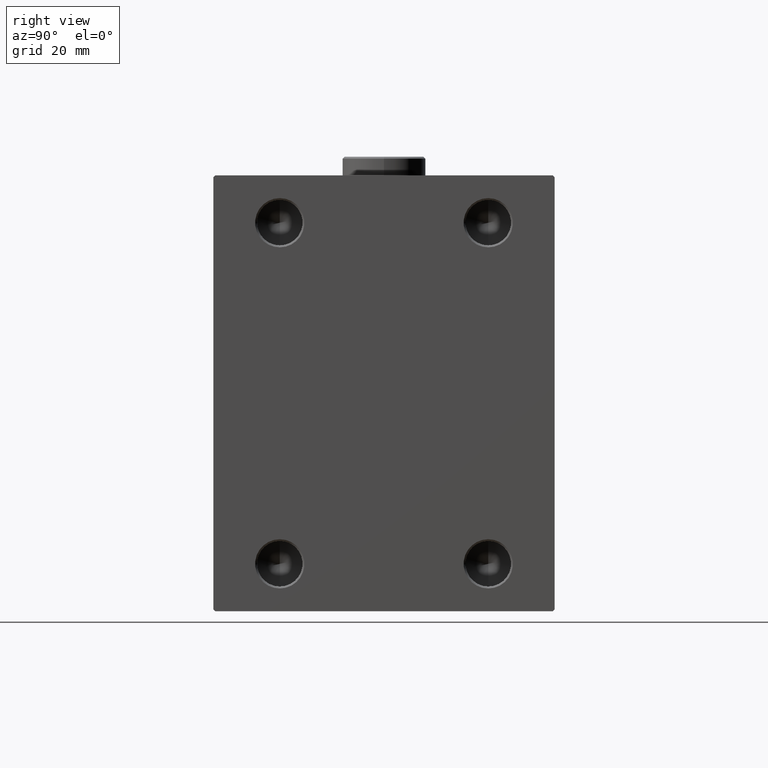
[diagram: clean part render]
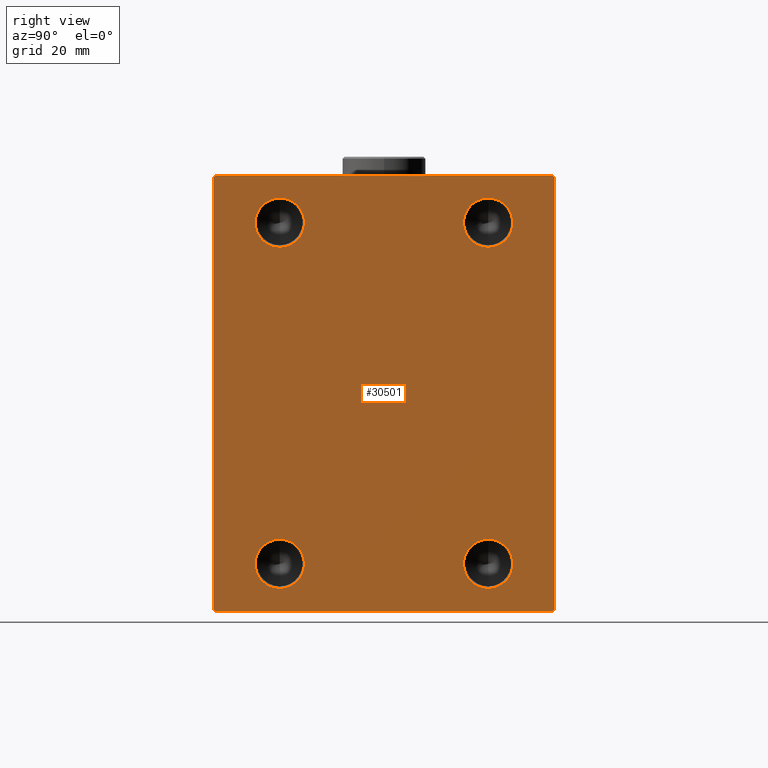
[diagram: same view with one face highlighted and labeled with its STEP entity id]
A machine part, right view. The second image highlights one B-rep face of the part: STEP entity #30501.
In plain terms, the highlighted planar face has unit normal (1, 0, 0).
Its self-contained STEP definition (entity closure, byte-faithful):
#115 = EDGE_CURVE ( 'NONE', #22630, #45405, #16005, .T. ) ;
#158 = VERTEX_POINT ( 'NONE', #10045 ) ;
#490 = VERTEX_POINT ( 'NONE', #8640 ) ;
#569 = DIRECTION ( 'NONE',  ( 1.000000000000000000, -0.000000000000000000, -0.000000000000000000 ) ) ;
#1115 = DIRECTION ( 'NONE',  ( 0.000000000000000000, 0.000000000000000000, -1.000000000000000000 ) ) ;
#1458 = CARTESIAN_POINT ( 'NONE',  ( 108.0000000000000000, 45.00000000000002842, -57.49999999999999289 ) ) ;
#1558 = DIRECTION ( 'NONE',  ( 1.000000000000000000, -0.000000000000000000, -0.000000000000000000 ) ) ;
#1763 = CARTESIAN_POINT ( 'NONE',  ( 108.0000000000000000, -27.49999999999999645, -45.00000000000001421 ) ) ;
#1944 = ORIENTED_EDGE ( 'NONE', *, *, #7257, .F. ) ;
#2392 = CARTESIAN_POINT ( 'NONE',  ( 108.0000000000000000, -44.50000000000002842, -57.49999999999999289 ) ) ;
#2439 = ORIENTED_EDGE ( 'NONE', *, *, #38990, .T. ) ;
#2465 = VECTOR ( 'NONE', #1115, 1000.000000000000000 ) ;
#2828 = CARTESIAN_POINT ( 'NONE',  ( 108.0000000000000000, -27.49999999999999645, 44.99999999999998579 ) ) ;
#2835 = EDGE_CURVE ( 'NONE', #45405, #22630, #4980, .T. ) ;
#3091 = AXIS2_PLACEMENT_3D ( 'NONE', #40921, #23370, #16439 ) ;
#3283 = CARTESIAN_POINT ( 'NONE',  ( 108.0000000000000000, -27.49999999999999645, 51.49999999999999289 ) ) ;
#3686 = EDGE_CURVE ( 'NONE', #33344, #15741, #13589, .T. ) ;
#3850 = ORIENTED_EDGE ( 'NONE', *, *, #115, .F. ) ;
#4179 = ORIENTED_EDGE ( 'NONE', *, *, #20142, .T. ) ;
#4241 = EDGE_LOOP ( 'NONE', ( #18279, #4441 ) ) ;
#4441 = ORIENTED_EDGE ( 'NONE', *, *, #20671, .F. ) ;
#4782 = CARTESIAN_POINT ( 'NONE',  ( 108.0000000000000000, -51.00000000000000711, -51.00000000000000711 ) ) ;
#4849 = DIRECTION ( 'NONE',  ( 1.000000000000000000, -0.000000000000000000, -0.000000000000000000 ) ) ;
#4858 = VERTEX_POINT ( 'NONE', #27139 ) ;
#4980 = CIRCLE ( 'NONE', #14574, 6.500000000000005329 ) ;
#5898 = EDGE_CURVE ( 'NONE', #9826, #29651, #33928, .T. ) ;
#6435 = LINE ( 'NONE', #12521, #19025 ) ;
#6538 = EDGE_CURVE ( 'NONE', #158, #4858, #29547, .T. ) ;
#6687 = VERTEX_POINT ( 'NONE', #25634 ) ;
#6883 = CARTESIAN_POINT ( 'NONE',  ( 108.0000000000000000, -45.00000000000000000, 56.99999999999999289 ) ) ;
#7257 = EDGE_CURVE ( 'NONE', #20959, #19937, #11667, .T. ) ;
#7532 = EDGE_CURVE ( 'NONE', #29651, #490, #6435, .T. ) ;
#8196 = CARTESIAN_POINT ( 'NONE',  ( 108.0000000000000000, 27.50000000000000355, -45.00000000000001421 ) ) ;
#8497 = DIRECTION ( 'NONE',  ( 0.000000000000000000, 0.000000000000000000, -1.000000000000000000 ) ) ;
#8640 = CARTESIAN_POINT ( 'NONE',  ( 108.0000000000000000, -44.49999999999997158, 57.49999999999999289 ) ) ;
#8985 = DIRECTION ( 'NONE',  ( -0.000000000000000000, -0.7071067811865474617, 0.7071067811865474617 ) ) ;
#9501 = FACE_BOUND ( 'NONE', #28234, .T. ) ;
#9826 = VERTEX_POINT ( 'NONE', #15693 ) ;
#9948 = FACE_BOUND ( 'NONE', #31400, .T. ) ;
#10045 = CARTESIAN_POINT ( 'NONE',  ( 108.0000000000000000, 44.50000000000002842, -57.49999999999999289 ) ) ;
#10056 = DIRECTION ( 'NONE',  ( 0.000000000000000000, -0.7071067811865474617, -0.7071067811865474617 ) ) ;
#10170 = PLANE ( 'NONE',  #3091 ) ;
#10603 = AXIS2_PLACEMENT_3D ( 'NONE', #14978, #25373, #42690 ) ;
#10968 = DIRECTION ( 'NONE',  ( 0.000000000000000000, 0.000000000000000000, -1.000000000000000000 ) ) ;
#11667 = CIRCLE ( 'NONE', #27889, 6.500000000000005329 ) ;
#12227 = CARTESIAN_POINT ( 'NONE',  ( 108.0000000000000000, 51.00000000000000711, -51.00000000000000711 ) ) ;
#12521 = CARTESIAN_POINT ( 'NONE',  ( 108.0000000000000000, 45.00000000000001421, 57.50000000000000711 ) ) ;
#13589 = LINE ( 'NONE', #4782, #27052 ) ;
#13736 = DIRECTION ( 'NONE',  ( 0.000000000000000000, 0.000000000000000000, -1.000000000000000000 ) ) ;
#14077 = DIRECTION ( 'NONE',  ( 1.000000000000000000, -0.000000000000000000, -0.000000000000000000 ) ) ;
#14532 = ORIENTED_EDGE ( 'NONE', *, *, #25796, .T. ) ;
#14574 = AXIS2_PLACEMENT_3D ( 'NONE', #31412, #14077, #42018 ) ;
#14978 = CARTESIAN_POINT ( 'NONE',  ( 108.0000000000000000, 27.50000000000000355, 44.99999999999998579 ) ) ;
#15062 = AXIS2_PLACEMENT_3D ( 'NONE', #38442, #32203, #13736 ) ;
#15131 = EDGE_LOOP ( 'NONE', ( #45554, #21005 ) ) ;
#15693 = CARTESIAN_POINT ( 'NONE',  ( 108.0000000000000000, 45.00000000000001421, 57.00000000000000711 ) ) ;
#15741 = VERTEX_POINT ( 'NONE', #2392 ) ;
#15867 = DIRECTION ( 'NONE',  ( 1.000000000000000000, -0.000000000000000000, -0.000000000000000000 ) ) ;
#16005 = CIRCLE ( 'NONE', #43295, 6.500000000000005329 ) ;
#16439 = DIRECTION ( 'NONE',  ( 0.000000000000000000, 0.000000000000000000, -1.000000000000000000 ) ) ;
#17219 = CARTESIAN_POINT ( 'NONE',  ( 108.0000000000000000, -51.00000000000000000, 51.00000000000000000 ) ) ;
#17283 = EDGE_CURVE ( 'NONE', #490, #31854, #31084, .T. ) ;
#18279 = ORIENTED_EDGE ( 'NONE', *, *, #27233, .F. ) ;
#18327 = LINE ( 'NONE', #1458, #37915 ) ;
#18657 = CIRCLE ( 'NONE', #45202, 6.500000000000005329 ) ;
#18938 = CARTESIAN_POINT ( 'NONE',  ( 108.0000000000000000, 27.50000000000000355, -45.00000000000001421 ) ) ;
#19025 = VECTOR ( 'NONE', #33309, 1000.000000000000000 ) ;
#19718 = DIRECTION ( 'NONE',  ( 1.000000000000000000, -0.000000000000000000, -0.000000000000000000 ) ) ;
#19937 = VERTEX_POINT ( 'NONE', #27409 ) ;
#20142 = EDGE_CURVE ( 'NONE', #15741, #158, #21106, .T. ) ;
#20178 = DIRECTION ( 'NONE',  ( 0.000000000000000000, 0.000000000000000000, -1.000000000000000000 ) ) ;
#20276 = CARTESIAN_POINT ( 'NONE',  ( 108.0000000000000000, 44.50000000000001421, 57.50000000000000711 ) ) ;
#20347 = VERTEX_POINT ( 'NONE', #40240 ) ;
#20671 = EDGE_CURVE ( 'NONE', #40595, #21925, #39178, .T. ) ;
#20959 = VERTEX_POINT ( 'NONE', #39616 ) ;
#21005 = ORIENTED_EDGE ( 'NONE', *, *, #35086, .F. ) ;
#21016 = ORIENTED_EDGE ( 'NONE', *, *, #5898, .T. ) ;
#21106 = LINE ( 'NONE', #31717, #37740 ) ;
#21925 = VERTEX_POINT ( 'NONE', #3283 ) ;
#22630 = VERTEX_POINT ( 'NONE', #37106 ) ;
#22651 = DIRECTION ( 'NONE',  ( 0.000000000000000000, 0.000000000000000000, -1.000000000000000000 ) ) ;
#22834 = LINE ( 'NONE', #39908, #2465 ) ;
#23370 = DIRECTION ( 'NONE',  ( 1.000000000000000000, 0.000000000000000000, 0.000000000000000000 ) ) ;
#23824 = FACE_BOUND ( 'NONE', #15131, .T. ) ;
#24889 = VECTOR ( 'NONE', #25864, 1000.000000000000114 ) ;
#25373 = DIRECTION ( 'NONE',  ( 1.000000000000000000, -0.000000000000000000, -0.000000000000000000 ) ) ;
#25634 = CARTESIAN_POINT ( 'NONE',  ( 108.0000000000000000, 27.50000000000000355, 38.49999999999997868 ) ) ;
#25796 = EDGE_CURVE ( 'NONE', #31854, #33344, #22834, .T. ) ;
#25864 = DIRECTION ( 'NONE',  ( -0.000000000000000000, 0.7071067811865474617, 0.7071067811865474617 ) ) ;
#25947 = AXIS2_PLACEMENT_3D ( 'NONE', #43144, #1558, #8497 ) ;
#25950 = VECTOR ( 'NONE', #10056, 1000.000000000000114 ) ;
#27052 = VECTOR ( 'NONE', #35967, 1000.000000000000114 ) ;
#27067 = FACE_BOUND ( 'NONE', #4241, .T. ) ;
#27114 = ORIENTED_EDGE ( 'NONE', *, *, #2835, .F. ) ;
#27139 = CARTESIAN_POINT ( 'NONE',  ( 108.0000000000000000, 45.00000000000002842, -56.99999999999999289 ) ) ;
#27233 = EDGE_CURVE ( 'NONE', #21925, #40595, #30525, .T. ) ;
#27409 = CARTESIAN_POINT ( 'NONE',  ( 108.0000000000000000, 27.50000000000000355, -51.50000000000002132 ) ) ;
#27889 = AXIS2_PLACEMENT_3D ( 'NONE', #8196, #569, #10968 ) ;
#28234 = EDGE_LOOP ( 'NONE', ( #1944, #43246 ) ) ;
#28436 = EDGE_LOOP ( 'NONE', ( #30431, #28955, #14532, #35960, #4179, #44487, #2439, #21016 ) ) ;
#28955 = ORIENTED_EDGE ( 'NONE', *, *, #17283, .T. ) ;
#29328 = CARTESIAN_POINT ( 'NONE',  ( 108.0000000000000000, -27.49999999999999645, -38.50000000000000711 ) ) ;
#29547 = LINE ( 'NONE', #12227, #24889 ) ;
#29651 = VERTEX_POINT ( 'NONE', #20276 ) ;
#30064 = VECTOR ( 'NONE', #8985, 1000.000000000000114 ) ;
#30431 = ORIENTED_EDGE ( 'NONE', *, *, #7532, .T. ) ;
#30501 = ADVANCED_FACE ( 'NONE', ( #23824, #27067, #9948, #9501, #41815 ), #10170, .T. ) ;
#30525 = CIRCLE ( 'NONE', #39345, 6.500000000000005329 ) ;
#31084 = LINE ( 'NONE', #17219, #25950 ) ;
#31400 = EDGE_LOOP ( 'NONE', ( #27114, #3850 ) ) ;
#31412 = CARTESIAN_POINT ( 'NONE',  ( 108.0000000000000000, -27.49999999999999645, -45.00000000000001421 ) ) ;
#31717 = CARTESIAN_POINT ( 'NONE',  ( 108.0000000000000000, -45.00000000000000000, -57.49999999999999289 ) ) ;
#31854 = VERTEX_POINT ( 'NONE', #6883 ) ;
#32042 = CIRCLE ( 'NONE', #15062, 6.500000000000005329 ) ;
#32203 = DIRECTION ( 'NONE',  ( 1.000000000000000000, -0.000000000000000000, -0.000000000000000000 ) ) ;
#33309 = DIRECTION ( 'NONE',  ( 0.000000000000000000, -1.000000000000000000, -1.541976423090495140E-16 ) ) ;
#33344 = VERTEX_POINT ( 'NONE', #35014 ) ;
#33928 = LINE ( 'NONE', #44785, #30064 ) ;
#34839 = CIRCLE ( 'NONE', #10603, 6.500000000000005329 ) ;
#35014 = CARTESIAN_POINT ( 'NONE',  ( 108.0000000000000000, -45.00000000000000000, -57.00000000000002132 ) ) ;
#35086 = EDGE_CURVE ( 'NONE', #6687, #20347, #34839, .T. ) ;
#35960 = ORIENTED_EDGE ( 'NONE', *, *, #3686, .T. ) ;
#35967 = DIRECTION ( 'NONE',  ( -0.000000000000000000, 0.7071067811865474617, -0.7071067811865474617 ) ) ;
#36753 = EDGE_CURVE ( 'NONE', #19937, #20959, #18657, .T. ) ;
#37106 = CARTESIAN_POINT ( 'NONE',  ( 108.0000000000000000, -27.49999999999999645, -51.50000000000002132 ) ) ;
#37554 = DIRECTION ( 'NONE',  ( 0.000000000000000000, 0.000000000000000000, -1.000000000000000000 ) ) ;
#37740 = VECTOR ( 'NONE', #42340, 1000.000000000000000 ) ;
#37915 = VECTOR ( 'NONE', #40029, 1000.000000000000000 ) ;
#38442 = CARTESIAN_POINT ( 'NONE',  ( 108.0000000000000000, 27.50000000000000355, 44.99999999999998579 ) ) ;
#38990 = EDGE_CURVE ( 'NONE', #4858, #9826, #18327, .T. ) ;
#39178 = CIRCLE ( 'NONE', #25947, 6.500000000000005329 ) ;
#39345 = AXIS2_PLACEMENT_3D ( 'NONE', #2828, #19718, #20178 ) ;
#39588 = CARTESIAN_POINT ( 'NONE',  ( 108.0000000000000000, -27.49999999999999645, 38.49999999999997868 ) ) ;
#39616 = CARTESIAN_POINT ( 'NONE',  ( 108.0000000000000000, 27.50000000000000355, -38.50000000000000711 ) ) ;
#39727 = EDGE_CURVE ( 'NONE', #20347, #6687, #32042, .T. ) ;
#39908 = CARTESIAN_POINT ( 'NONE',  ( 108.0000000000000000, -45.00000000000000000, 57.49999999999999289 ) ) ;
#40029 = DIRECTION ( 'NONE',  ( 0.000000000000000000, -1.206764157201257045E-16, 1.000000000000000000 ) ) ;
#40240 = CARTESIAN_POINT ( 'NONE',  ( 108.0000000000000000, 27.50000000000000355, 51.49999999999999289 ) ) ;
#40595 = VERTEX_POINT ( 'NONE', #39588 ) ;
#40921 = CARTESIAN_POINT ( 'NONE',  ( 108.0000000000000000, 0.000000000000000000, 0.000000000000000000 ) ) ;
#41815 = FACE_OUTER_BOUND ( 'NONE', #28436, .T. ) ;
#42018 = DIRECTION ( 'NONE',  ( 0.000000000000000000, 0.000000000000000000, -1.000000000000000000 ) ) ;
#42340 = DIRECTION ( 'NONE',  ( 0.000000000000000000, 1.000000000000000000, 0.000000000000000000 ) ) ;
#42690 = DIRECTION ( 'NONE',  ( 0.000000000000000000, 0.000000000000000000, -1.000000000000000000 ) ) ;
#43144 = CARTESIAN_POINT ( 'NONE',  ( 108.0000000000000000, -27.49999999999999645, 44.99999999999998579 ) ) ;
#43246 = ORIENTED_EDGE ( 'NONE', *, *, #36753, .F. ) ;
#43295 = AXIS2_PLACEMENT_3D ( 'NONE', #1763, #15867, #37554 ) ;
#44487 = ORIENTED_EDGE ( 'NONE', *, *, #6538, .T. ) ;
#44785 = CARTESIAN_POINT ( 'NONE',  ( 108.0000000000000000, 51.00000000000000711, 51.00000000000000711 ) ) ;
#45202 = AXIS2_PLACEMENT_3D ( 'NONE', #18938, #4849, #22651 ) ;
#45405 = VERTEX_POINT ( 'NONE', #29328 ) ;
#45554 = ORIENTED_EDGE ( 'NONE', *, *, #39727, .F. ) ;